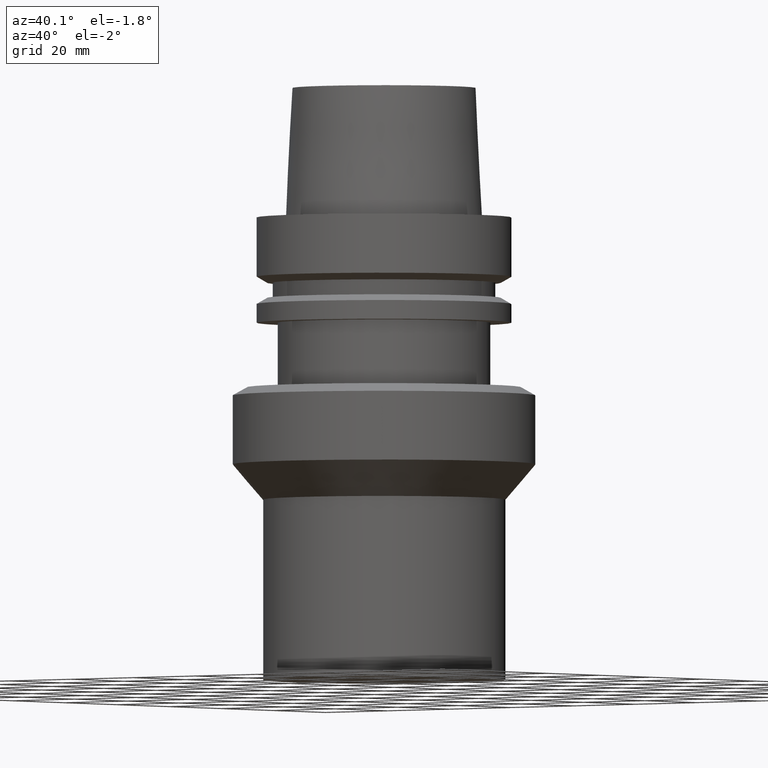
[diagram: clean part render]
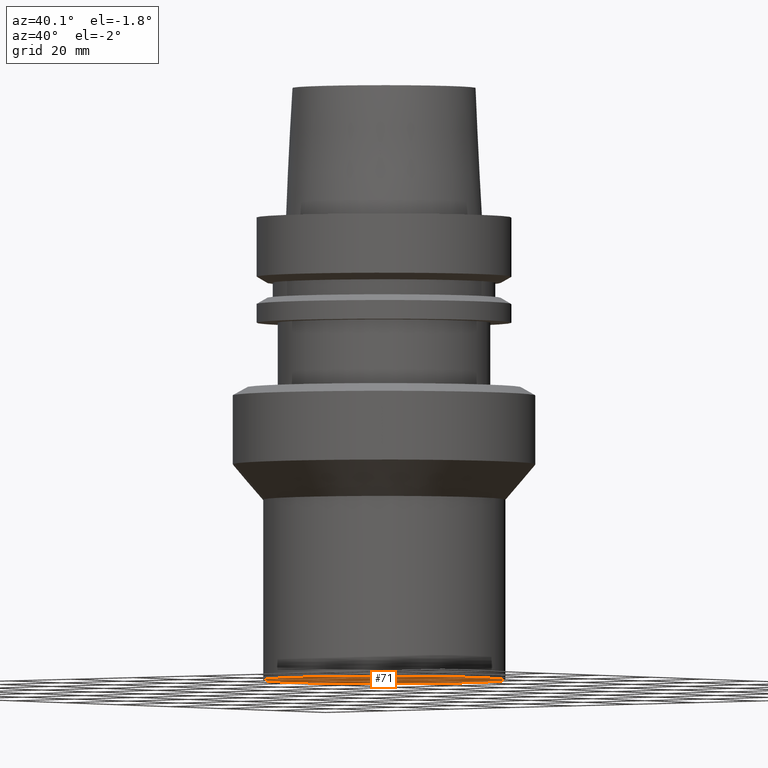
[diagram: same view with one face highlighted and labeled with its STEP entity id]
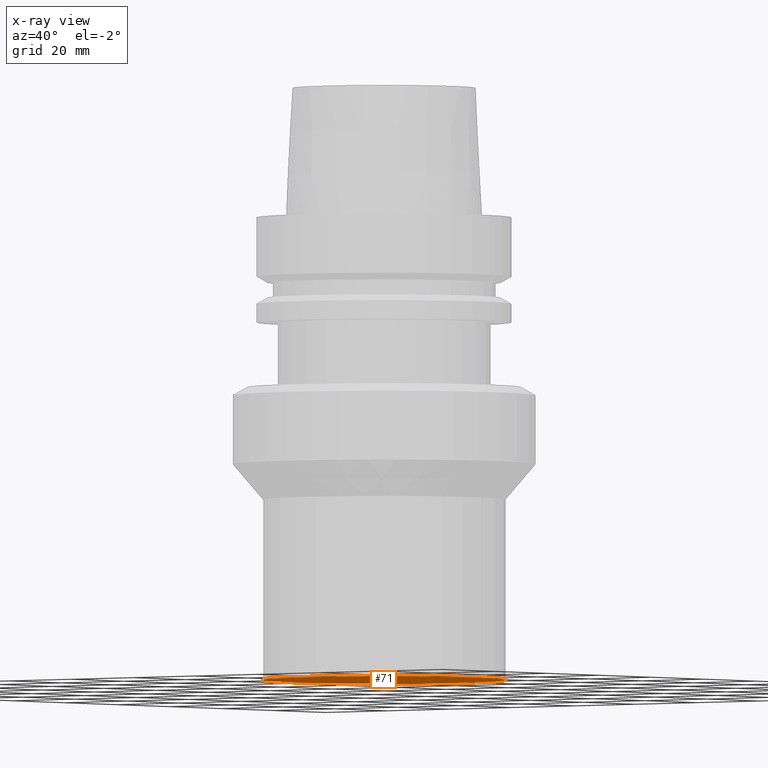
[diagram: x-ray of the same camera — body ghosted, the highlighted face saturated]
A machine part, auxiliary view. The second image highlights one B-rep face of the part: STEP entity #71.
The next image is the same camera in x-ray: the body ghosted, the highlighted face saturated — about 0% of this face is hidden behind the body in this view.
In plain terms, the highlighted planar face has unit normal (0, 0, -1).
Its self-contained STEP definition (entity closure, byte-faithful):
#71=ADVANCED_FACE('Unnamed[1]',(#184),#185,.T.);
#108=EDGE_CURVE('Unnamed[1]',#244,#244,#245,.T.);
#184=FACE_OUTER_BOUND('',#337,.T.);
#185=PLANE('',#338);
#244=VERTEX_POINT('',#411);
#245=CIRCLE('',#412,30.0);
#337=EDGE_LOOP('',(#511));
#338=AXIS2_PLACEMENT_3D('',#512,#513,#514);
#411=CARTESIAN_POINT('',(6.99885645712725E-015,30.0,-114.300000000002));
#412=AXIS2_PLACEMENT_3D('',#581,#582,#583);
#511=ORIENTED_EDGE('',*,*,#108,.F.);
#512=CARTESIAN_POINT('',(6.99885645712726E-015,15.0,-114.300000000002));
#513=DIRECTION('',(6.12323399573677E-017,1.33859290807699E-014,-1.0));
#514=DIRECTION('',(8.24478912849688E-031,-1.0,-1.33859290807699E-014));
#581=CARTESIAN_POINT('',(6.99885645712725E-015,1.39977129142545E-014,-114.300000000002));
#582=DIRECTION('',(-6.12323399573677E-017,-1.22464679914693E-016,1.0));
#583=DIRECTION('',(-1.23259516440783E-032,1.0,1.22464679914693E-016));